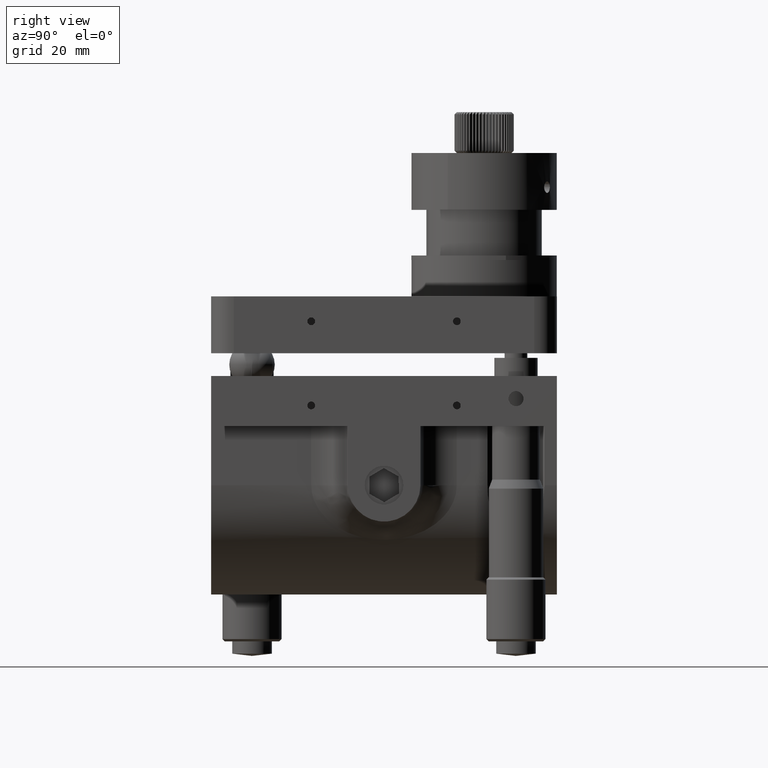
[diagram: clean part render]
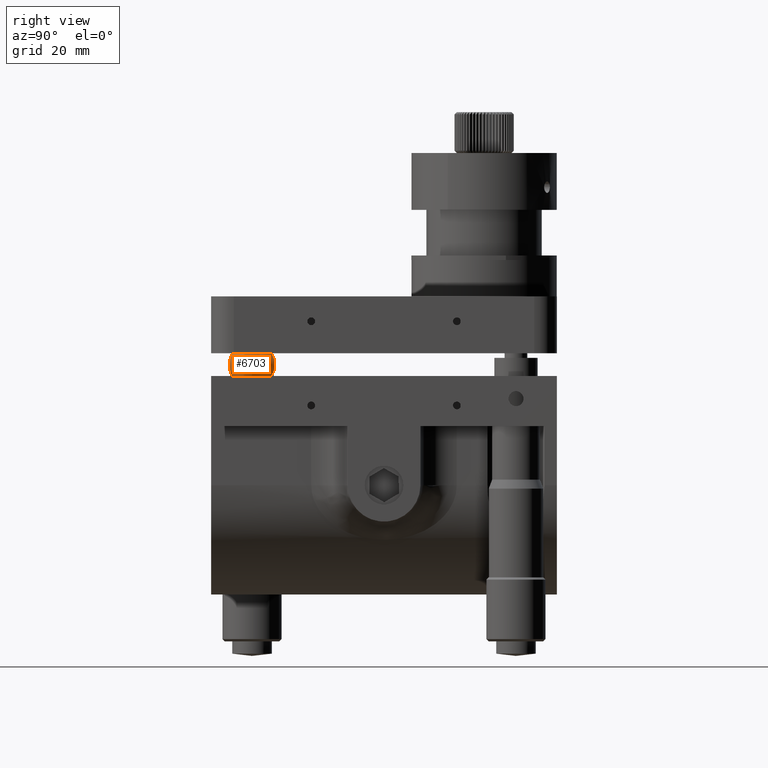
[diagram: same view with one face highlighted and labeled with its STEP entity id]
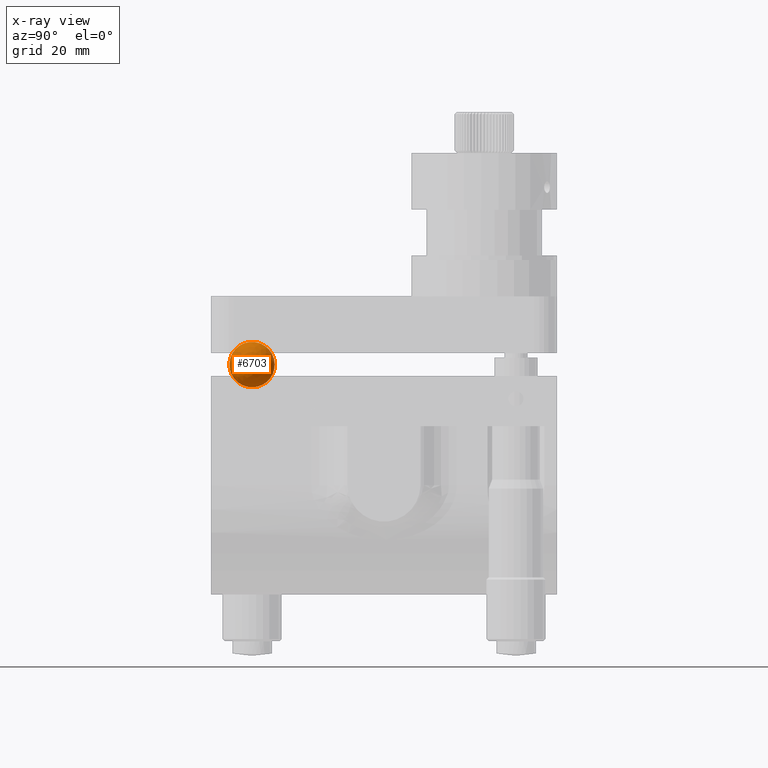
[diagram: x-ray of the same camera — body ghosted, the highlighted face saturated]
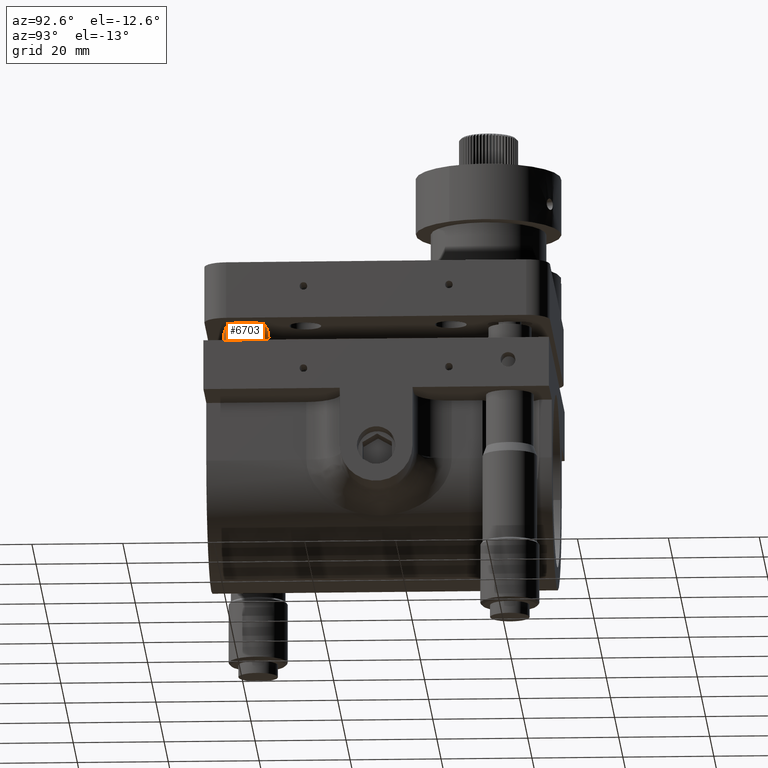
[diagram: same view with one face highlighted and labeled with its STEP entity id]
A machine part, right view. The second image highlights one B-rep face of the part: STEP entity #6703.
The next image is the same camera in x-ray: the body ghosted, the highlighted face saturated — about 0% of this face is hidden behind the body in this view.
A second angle (auxiliary view) of the same face is appended — the face is thin or edge-on in the first view.
In plain terms, the highlighted spherical surface has radius 5 mm.
Its self-contained STEP definition (entity closure, byte-faithful):
#470 = DIRECTION ( 'NONE',  ( 0.9994022128978000700, -5.315556471237662600E-015, -0.03457190846598583900 ) ) ;
#599 = CARTESIAN_POINT ( 'NONE',  ( 29.00000000000003600, 243.0000000000000600, 26.50000000000000700 ) ) ;
#1914 = EDGE_LOOP ( 'NONE', ( #8788, #11492 ) ) ;
#1949 = AXIS2_PLACEMENT_3D ( 'NONE', #10960, #470, #9085 ) ;
#3123 = EDGE_CURVE ( 'NONE', #4786, #7708, #9612, .T. ) ;
#3618 = AXIS2_PLACEMENT_3D ( 'NONE', #599, #10379, #9503 ) ;
#3961 = EDGE_CURVE ( 'NONE', #4786, #7708, #10339, .T. ) ;
#4786 = VERTEX_POINT ( 'NONE', #7676 ) ;
#4966 = FACE_OUTER_BOUND ( 'NONE', #1914, .T. ) ;
#5765 = CARTESIAN_POINT ( 'NONE',  ( 29.00000000000003600, 243.0000000000000600, 26.50000000000000700 ) ) ;
#6703 = ADVANCED_FACE ( 'NONE', ( #4966 ), #10978, .T. ) ;
#7671 = DIRECTION ( 'NONE',  ( -0.9994022128978000700, 5.315556471237663400E-015, 0.03457190846598571400 ) ) ;
#7676 = CARTESIAN_POINT ( 'NONE',  ( 29.00000000000000700, 238.0000000000000600, 26.50000000000000000 ) ) ;
#7708 = VERTEX_POINT ( 'NONE', #9638 ) ;
#8524 = AXIS2_PLACEMENT_3D ( 'NONE', #5765, #7671, #11479 ) ;
#8788 = ORIENTED_EDGE ( 'NONE', *, *, #3961, .F. ) ;
#9085 = DIRECTION ( 'NONE',  ( -0.03457190846598567900, 0.0000000000000000000, -0.9994022128978000700 ) ) ;
#9503 = DIRECTION ( 'NONE',  ( -0.03457190846598561000, 0.0000000000000000000, -0.9994022128977999600 ) ) ;
#9612 = CIRCLE ( 'NONE', #1949, 5.000000000000000000 ) ;
#9638 = CARTESIAN_POINT ( 'NONE',  ( 29.00000000000006400, 248.0000000000000600, 26.50000000000001400 ) ) ;
#10339 = CIRCLE ( 'NONE', #8524, 4.999999999999996400 ) ;
#10379 = DIRECTION ( 'NONE',  ( -0.9994022128977999600, 5.315556471237662600E-015, 0.03457190846598561000 ) ) ;
#10960 = CARTESIAN_POINT ( 'NONE',  ( 29.00000000000003600, 243.0000000000000600, 26.50000000000000700 ) ) ;
#10978 = SPHERICAL_SURFACE ( 'NONE', #3618, 5.000000000000000000 ) ;
#11479 = DIRECTION ( 'NONE',  ( 0.03457190846598570700, 0.0000000000000000000, 0.9994022128978000700 ) ) ;
#11492 = ORIENTED_EDGE ( 'NONE', *, *, #3123, .T. ) ;